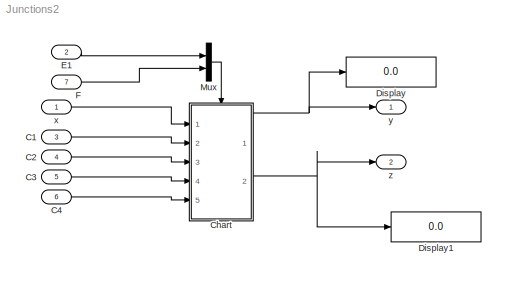
MODEL Junctions2
KIND model
BLOCK [Inport] C1
  IconDisplay = Port number
  Port = 3
  SID = 19
BLOCK [Inport] C2
  IconDisplay = Port number
  Port = 4
  SID = 20
BLOCK [Inport] C3
  IconDisplay = Port number
  Port = 5
  SID = 21
BLOCK [Inport] C4
  IconDisplay = Port number
  Port = 6
  SID = 22
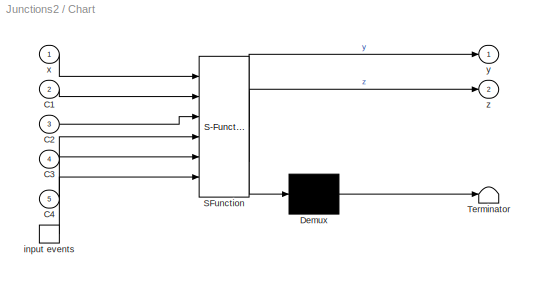
BLOCK [SubSystem] Chart
  ErrorFcn = Stateflow.Translate.translate
  PermitHierarchicalResolution = ExplicitOnly
  Ports = [5, 2, 0, 1]
  RequestExecContextInheritance = off
  SFBlockType = Chart
  SID = 1
  TreatAsAtomicUnit = on
  Variant = off
BLOCK [Demux] Chart/ Demux 
  Outputs = 1
  Ports = [1, 1]
  SID = 1::18
BLOCK [S-Function] Chart/ SFunction 
  EnableBusSupport = on
  FunctionName = sf_sfun
  Parameters = x3,x4
  PortCounts = [6 3]
  Ports = [6, 3]
  SFcnIsStateOwnerBlock = off
  SFunctionDeploymentMode = off
  SID = 1::17
  Tag = Stateflow S-Function Junctions2 1
BLOCK [Terminator] Chart/ Terminator 
  SID = 1::19
BLOCK [Inport] Chart/C1
  IconDisplay = Port number
  Port = 2
  SID = 1::20
BLOCK [Inport] Chart/C2
  IconDisplay = Port number
  Port = 3
  SID = 1::21
BLOCK [Inport] Chart/C3
  IconDisplay = Port number
  Port = 4
  SID = 1::22
BLOCK [Inport] Chart/C4
  IconDisplay = Port number
  Port = 5
  SID = 1::23
BLOCK [TriggerPort] Chart/input events
  Ports = [0, 1]
  SID = 1::2
  ShowOutputPort = on
  TriggerType = either
  VariantControl = (inherit)
BLOCK [Inport] Chart/x
  IconDisplay = Port number
  SID = 1::1
BLOCK [Outport] Chart/y
  IconDisplay = Port number
  SID = 1::6
BLOCK [Outport] Chart/z
  IconDisplay = Port number
  Port = 2
  SID = 1::7
BLOCK [Display] Display
  Decimation = 1
  Ports = [1]
  SID = 14
BLOCK [Display] Display1
  Decimation = 1
  Ports = [1]
  SID = 15
BLOCK [Inport] E1
  IconDisplay = Port number
  Port = 2
  SID = 17
BLOCK [Inport] F
  IconDisplay = Port number
  Port = 7
  SID = 24
BLOCK [Mux] Mux
  DisplayOption = bar
  Inputs = 2
  Ports = [2, 1]
  SID = 23
BLOCK [Inport] x
  IconDisplay = Port number
  SID = 18
BLOCK [Outport] y
  IconDisplay = Port number
  SID = 9
BLOCK [Outport] z
  IconDisplay = Port number
  Port = 2
  SID = 10
LINE C1:1 -> Chart:2
LINE C2:1 -> Chart:3
LINE C3:1 -> Chart:4
LINE C4:1 -> Chart:5
LINE Chart/ Demux :1 -> Chart/ Terminator :1
LINE Chart/ SFunction :1 -> Chart/ Demux :1
LINE Chart/ SFunction :2 -> Chart/y:1
LINE Chart/ SFunction :3 -> Chart/z:1
LINE Chart/C1:1 -> Chart/ SFunction :2
LINE Chart/C2:1 -> Chart/ SFunction :3
LINE Chart/C3:1 -> Chart/ SFunction :4
LINE Chart/C4:1 -> Chart/ SFunction :5
LINE Chart/input events:1 -> Chart/ SFunction :6
LINE Chart/x:1 -> Chart/ SFunction :1
NET Chart:1 -> Display:1, y:1
NET Chart:2 -> Display1:1, z:1
LINE E1:1 -> Mux:1
LINE F:1 -> Mux:2
LINE Mux:1 -> Chart:trigger
LINE x:1 -> Chart:1
note: NET lines group one-source signal fan-out (src -> all destinations, sorted); 1:1 wires keep LINE
CHART Chart states=4 transitions=6
  STATE_LABEL 'A\\nen: y = 0;\\n x1 = 0;\\n z = 0;\\nex : y=2.*x3+x4'
  STATE_LABEL 'C\\ndu : x1 = x1 + 1;'
  STATE_LABEL 'B\\ndu : x1 = x1 - 1;'
  STATE_LABEL 'D\\ndu : x1 = x1 + 1;'
